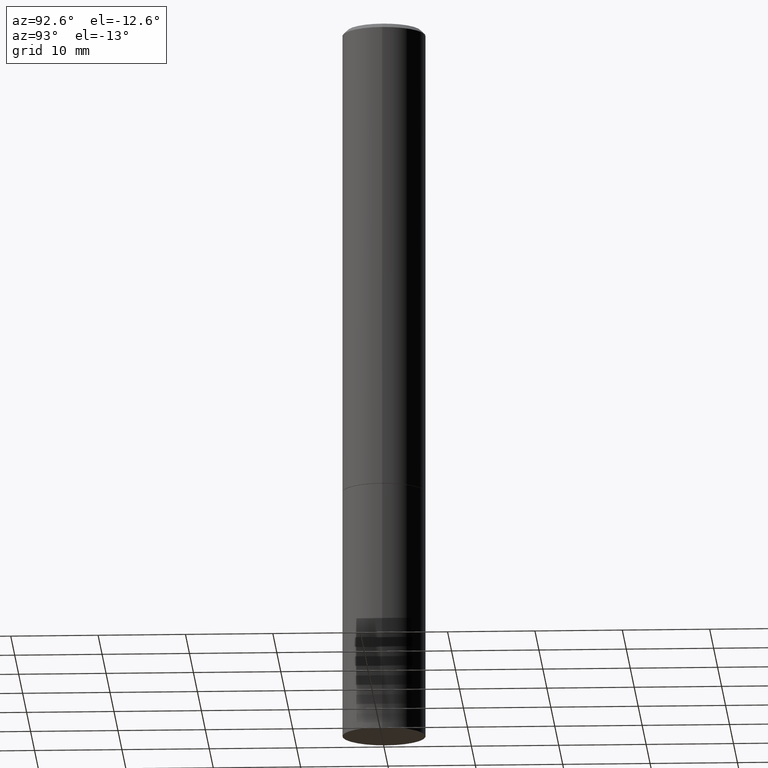
[diagram: clean part render]
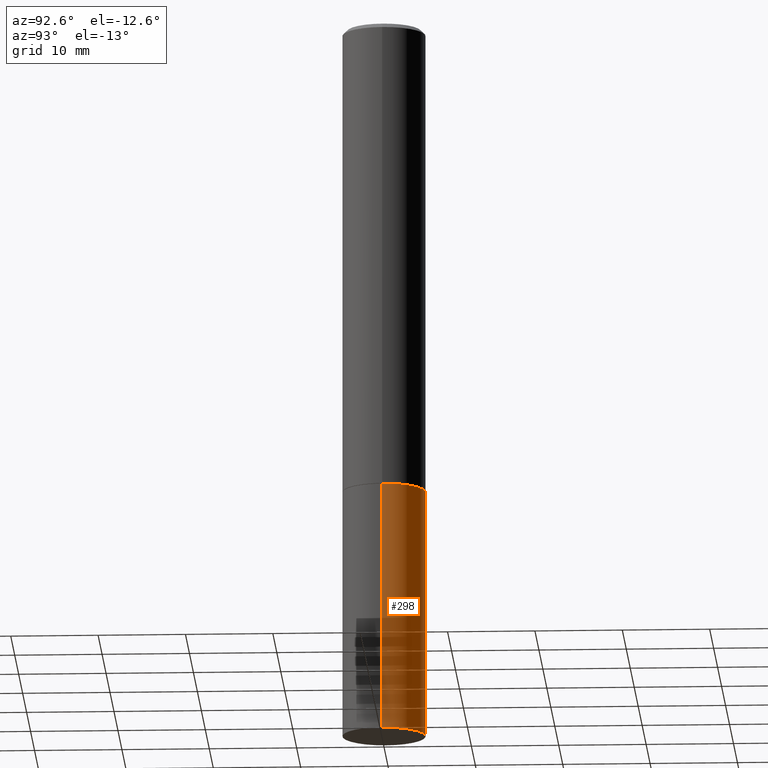
[diagram: same view with one face highlighted and labeled with its STEP entity id]
A machine part, auxiliary view. The second image highlights one B-rep face of the part: STEP entity #298.
In plain terms, the highlighted cylindrical surface (partial cylindrical patch) has radius 4.7625 mm, axis along (-0, 0, 1).
Its self-contained STEP definition (entity closure, byte-faithful):
#17 = EDGE_LOOP ( 'NONE', ( #38, #184, #227, #345 ) ) ;
#18 = CARTESIAN_POINT ( 'NONE',  ( 7.947773620101693940E-29, -1.134731435124022443E-14, -3.250000000000000000 ) ) ;
#24 = DIRECTION ( 'NONE',  ( -2.445468806185136597E-29, 3.491481338843145583E-15, 1.000000000000000000 ) ) ;
#38 = ORIENTED_EDGE ( 'NONE', *, *, #201, .T. ) ;
#47 = DIRECTION ( 'NONE',  ( -2.445468806185136597E-29, 3.491481338843145583E-15, 1.000000000000000000 ) ) ;
#81 = DIRECTION ( 'NONE',  ( -2.445468806185136597E-29, 3.491481338843145583E-15, 1.000000000000000000 ) ) ;
#107 = DIRECTION ( 'NONE',  ( -2.445468806185136877E-29, 3.491481338843145188E-15, 1.000000000000000000 ) ) ;
#108 = DIRECTION ( 'NONE',  ( 1.000000000000000000, -6.982962677686261189E-15, 0.000000000000000000 ) ) ;
#112 = AXIS2_PLACEMENT_3D ( 'NONE', #275, #24, #197 ) ;
#114 = CYLINDRICAL_SURFACE ( 'NONE', #169, 0.1875000000000000278 ) ;
#132 = CARTESIAN_POINT ( 'NONE',  ( -0.1875000000000000278, 1.332267629550188046E-15, -9.223003294227947991E-30 ) ) ;
#133 = FACE_OUTER_BOUND ( 'NONE', #17, .T. ) ;
#136 = CARTESIAN_POINT ( 'NONE',  ( 0.1875000000000000278, -1.265661985330639786E-14, -3.250000000000000000 ) ) ;
#162 = VECTOR ( 'NONE', #107, 39.37007874015748143 ) ;
#165 = CARTESIAN_POINT ( 'NONE',  ( -0.1875000000000000278, -8.051088468590765387E-15, -2.125000000000000000 ) ) ;
#166 = CARTESIAN_POINT ( 'NONE',  ( -0.1875000000000000278, -8.051088468590765387E-15, -3.250000000000000000 ) ) ;
#169 = AXIS2_PLACEMENT_3D ( 'NONE', #359, #81, #332 ) ;
#176 = VERTEX_POINT ( 'NONE', #166 ) ;
#184 = ORIENTED_EDGE ( 'NONE', *, *, #223, .T. ) ;
#189 = EDGE_CURVE ( 'NONE', #229, #191, #239, .T. ) ;
#191 = VERTEX_POINT ( 'NONE', #165 ) ;
#194 = VECTOR ( 'NONE', #277, 39.37007874015748143 ) ;
#197 = DIRECTION ( 'NONE',  ( 1.000000000000000000, -6.982962677686266711E-15, 0.000000000000000000 ) ) ;
#201 = EDGE_CURVE ( 'NONE', #213, #176, #208, .T. ) ;
#208 = CIRCLE ( 'NONE', #252, 0.1875000000000000278 ) ;
#213 = VERTEX_POINT ( 'NONE', #136 ) ;
#223 = EDGE_CURVE ( 'NONE', #176, #191, #242, .T. ) ;
#227 = ORIENTED_EDGE ( 'NONE', *, *, #189, .F. ) ;
#229 = VERTEX_POINT ( 'NONE', #304 ) ;
#239 = CIRCLE ( 'NONE', #112, 0.1875000000000000278 ) ;
#242 = LINE ( 'NONE', #132, #194 ) ;
#246 = LINE ( 'NONE', #276, #162 ) ;
#252 = AXIS2_PLACEMENT_3D ( 'NONE', #18, #47, #108 ) ;
#274 = EDGE_CURVE ( 'NONE', #213, #229, #246, .T. ) ;
#275 = CARTESIAN_POINT ( 'NONE',  ( 5.196621213143415268E-29, -7.419397845041683624E-15, -2.125000000000000000 ) ) ;
#276 = CARTESIAN_POINT ( 'NONE',  ( 0.1875000000000000278, -1.309305502066175008E-15, 9.142831454617381013E-30 ) ) ;
#277 = DIRECTION ( 'NONE',  ( -2.445468806185136877E-29, 3.491481338843145188E-15, 1.000000000000000000 ) ) ;
#298 = ADVANCED_FACE ( 'NONE', ( #133 ), #114, .T. ) ;
#304 = CARTESIAN_POINT ( 'NONE',  ( 0.1875000000000000278, -8.728703347107858632E-15, -2.125000000000000000 ) ) ;
#332 = DIRECTION ( 'NONE',  ( 1.000000000000000000, -6.982962677686265922E-15, 4.876176775795935793E-29 ) ) ;
#345 = ORIENTED_EDGE ( 'NONE', *, *, #274, .F. ) ;
#359 = CARTESIAN_POINT ( 'NONE',  ( 0.000000000000000000, 0.000000000000000000, 0.000000000000000000 ) ) ;